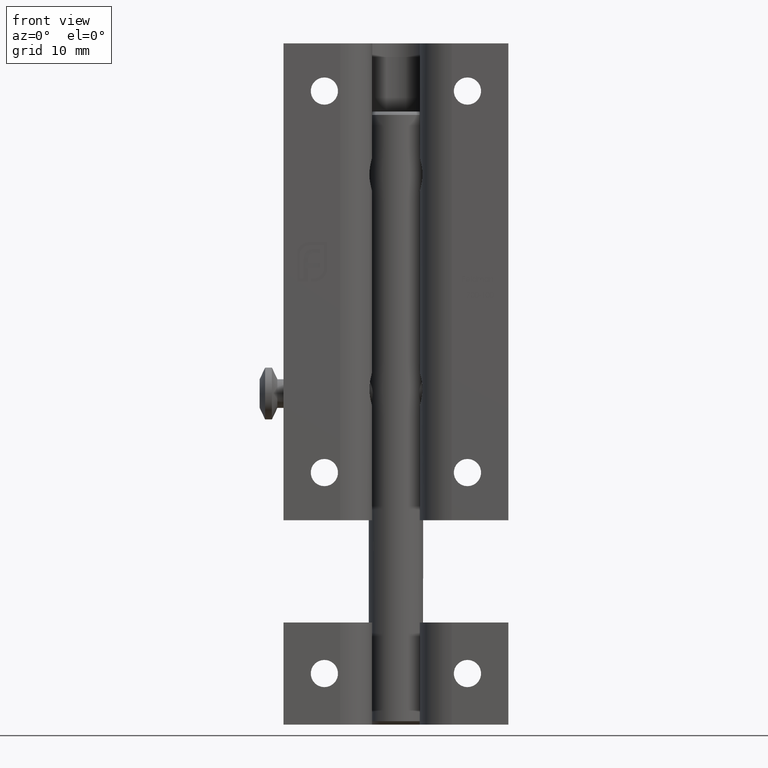
[diagram: clean part render]
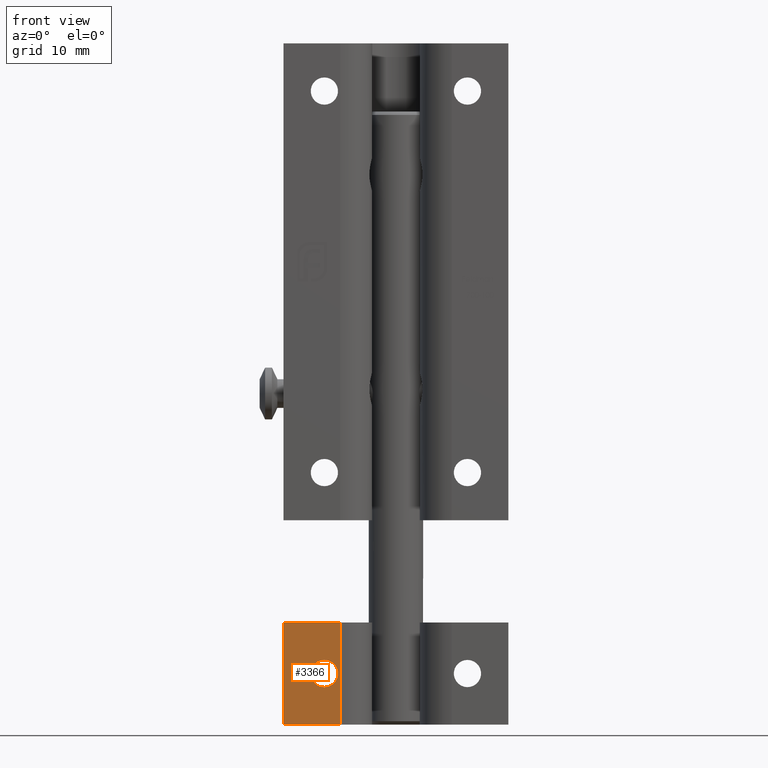
[diagram: same view with one face highlighted and labeled with its STEP entity id]
A machine part, front view. The second image highlights one B-rep face of the part: STEP entity #3366.
In plain terms, the highlighted planar face has unit normal (0, 1, 0).
Its self-contained STEP definition (entity closure, byte-faithful):
#246 = CARTESIAN_POINT ( 'NONE',  ( -16.50000000000000000, 0.000000000000000000, 7.500000000000000000 ) ) ;
#291 = DIRECTION ( 'NONE',  ( -0.000000000000000000, -0.000000000000000000, -1.000000000000000000 ) ) ;
#661 = EDGE_CURVE ( 'NONE', #14734, #7672, #4991, .T. ) ;
#982 = AXIS2_PLACEMENT_3D ( 'NONE', #246, #1373, #8539 ) ;
#1217 = ORIENTED_EDGE ( 'NONE', *, *, #1471, .T. ) ;
#1231 = AXIS2_PLACEMENT_3D ( 'NONE', #7199, #2508, #6106 ) ;
#1373 = DIRECTION ( 'NONE',  ( 0.000000000000000000, 1.000000000000000000, 0.000000000000000000 ) ) ;
#1450 = EDGE_CURVE ( 'NONE', #12165, #12021, #1847, .T. ) ;
#1471 = EDGE_CURVE ( 'NONE', #12165, #14734, #3527, .T. ) ;
#1477 = CARTESIAN_POINT ( 'NONE',  ( -16.50000000000000000, 0.000000000000000000, 7.500000000000000000 ) ) ;
#1684 = ORIENTED_EDGE ( 'NONE', *, *, #1450, .F. ) ;
#1763 = CARTESIAN_POINT ( 'NONE',  ( -8.192006389780432940, 0.000000000000000000, 7.500000000000000000 ) ) ;
#1847 = LINE ( 'NONE', #5897, #12259 ) ;
#2508 = DIRECTION ( 'NONE',  ( 0.000000000000000000, 1.000000000000000000, 0.000000000000000000 ) ) ;
#2911 = DIRECTION ( 'NONE',  ( -0.000000000000000000, -0.000000000000000000, -1.000000000000000000 ) ) ;
#3122 = LINE ( 'NONE', #1763, #12980 ) ;
#3185 = ORIENTED_EDGE ( 'NONE', *, *, #8856, .T. ) ;
#3366 = ADVANCED_FACE ( 'NONE', ( #3494, #12613 ), #5036, .F. ) ;
#3494 = FACE_BOUND ( 'NONE', #13024, .T. ) ;
#3527 = LINE ( 'NONE', #1477, #11357 ) ;
#4991 = LINE ( 'NONE', #11152, #6888 ) ;
#5036 = PLANE ( 'NONE',  #982 ) ;
#5897 = CARTESIAN_POINT ( 'NONE',  ( -16.50000000000000000, 0.000000000000000000, 7.500000000000000000 ) ) ;
#6106 = DIRECTION ( 'NONE',  ( 0.000000000000000000, 0.000000000000000000, 1.000000000000000000 ) ) ;
#6428 = DIRECTION ( 'NONE',  ( 1.000000000000000000, 0.000000000000000000, 0.000000000000000000 ) ) ;
#6888 = VECTOR ( 'NONE', #6428, 1000.000000000000000 ) ;
#6990 = ORIENTED_EDGE ( 'NONE', *, *, #7896, .F. ) ;
#7199 = CARTESIAN_POINT ( 'NONE',  ( -10.50000000000000000, 0.000000000000000000, 0.000000000000000000 ) ) ;
#7468 = VERTEX_POINT ( 'NONE', #15229 ) ;
#7672 = VERTEX_POINT ( 'NONE', #11682 ) ;
#7896 = EDGE_CURVE ( 'NONE', #12021, #7672, #3122, .T. ) ;
#8539 = DIRECTION ( 'NONE',  ( 0.000000000000000000, -0.000000000000000000, 1.000000000000000000 ) ) ;
#8734 = CARTESIAN_POINT ( 'NONE',  ( -16.50000000000000000, 0.000000000000000000, -7.500000000000000000 ) ) ;
#8856 = EDGE_CURVE ( 'NONE', #7468, #7468, #10773, .T. ) ;
#8936 = CARTESIAN_POINT ( 'NONE',  ( -16.50000000000000000, 0.000000000000000000, 7.500000000000000000 ) ) ;
#10773 = CIRCLE ( 'NONE', #1231, 1.999999999999999556 ) ;
#11152 = CARTESIAN_POINT ( 'NONE',  ( -16.50000000000000000, 0.000000000000000000, -7.500000000000000000 ) ) ;
#11357 = VECTOR ( 'NONE', #291, 1000.000000000000000 ) ;
#11682 = CARTESIAN_POINT ( 'NONE',  ( -8.192006389780432940, 0.000000000000000000, -7.500000000000000000 ) ) ;
#11867 = DIRECTION ( 'NONE',  ( 1.000000000000000000, 0.000000000000000000, 0.000000000000000000 ) ) ;
#12021 = VERTEX_POINT ( 'NONE', #13000 ) ;
#12165 = VERTEX_POINT ( 'NONE', #8936 ) ;
#12259 = VECTOR ( 'NONE', #11867, 1000.000000000000000 ) ;
#12613 = FACE_OUTER_BOUND ( 'NONE', #13657, .T. ) ;
#12980 = VECTOR ( 'NONE', #2911, 1000.000000000000000 ) ;
#13000 = CARTESIAN_POINT ( 'NONE',  ( -8.192006389780432940, 0.000000000000000000, 7.500000000000000000 ) ) ;
#13024 = EDGE_LOOP ( 'NONE', ( #3185 ) ) ;
#13657 = EDGE_LOOP ( 'NONE', ( #13970, #6990, #1684, #1217 ) ) ;
#13970 = ORIENTED_EDGE ( 'NONE', *, *, #661, .T. ) ;
#14734 = VERTEX_POINT ( 'NONE', #8734 ) ;
#15229 = CARTESIAN_POINT ( 'NONE',  ( -10.50000000000000000, 0.000000000000000000, 1.999999999999999556 ) ) ;